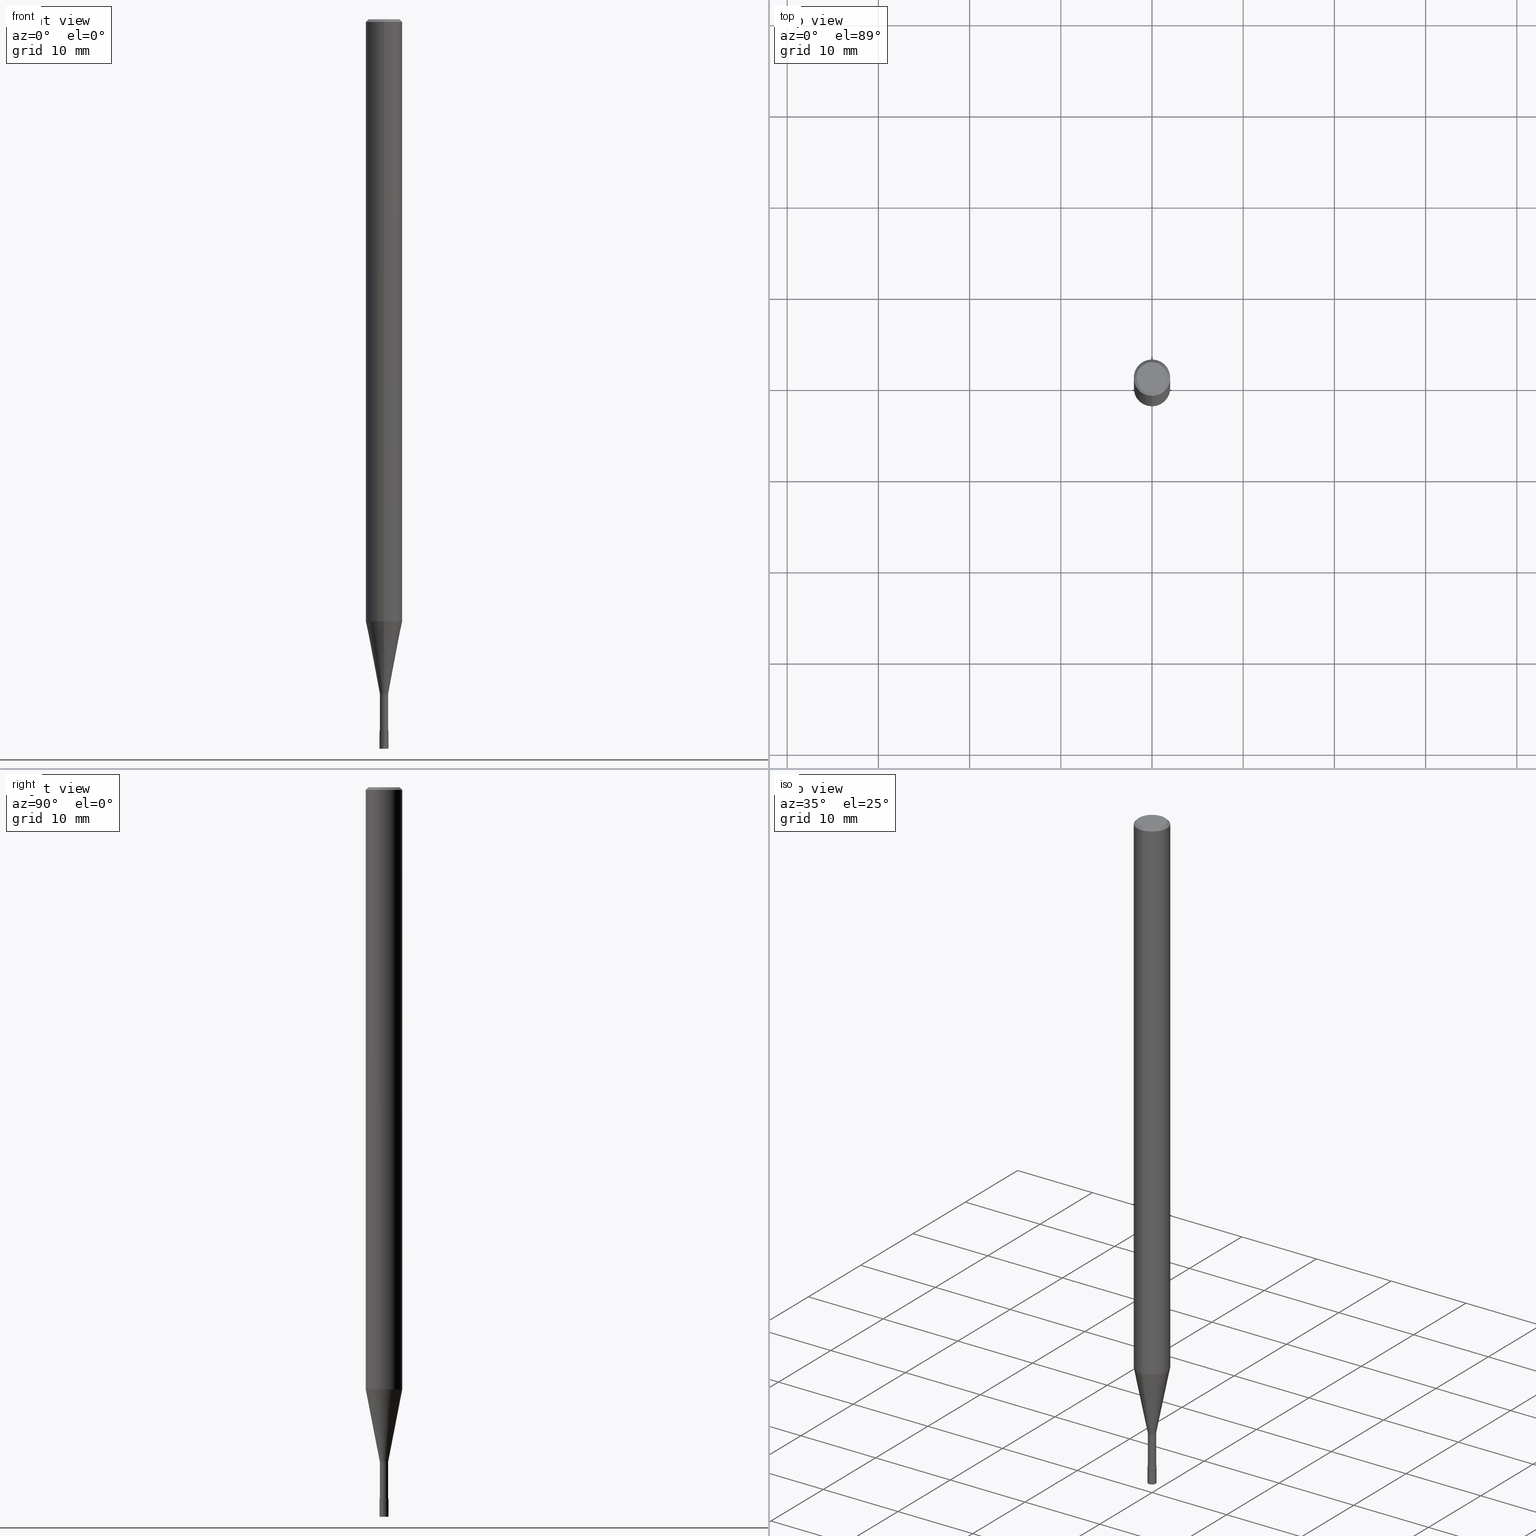
[diagram: canonical four-view strip — front | top / right | iso, engineering-drawing reading convention]
A machine part, canonical four-view strip (front | top / right | iso — engineering-drawing reading convention). The complete STEP part file that produces these views, byte-faithful:
ISO-10303-21;
HEADER;
FILE_DESCRIPTION(('no description'),'unknown implementation level');
FILE_NAME('CPRL2010-6-Huellk.stp','  ',('CIMSOURCE GmbH'),('CADClick - KiM GmbH - www.kimweb.de'),'unknown preprocess','ACIS','unknown authorization');
FILE_SCHEMA(('automotive_design'));
ENDSEC;
DATA;
#1=MECHANICAL_DESIGN_GEOMETRIC_PRESENTATION_REPRESENTATION(' ',(#14,#15,#16,#17,#18,#19,#20,#21,#22,#23,#24,#25,#26,#27,#28,#29,#30,#31,#32,#33,#34,#35,#36,#37,#38,#39,#40,#41,#42,#43,#44,#45,#46,#47,#48,#49,#50,#51,#52,#53,#54,#55,#56,#57,#58,#59,#60,#61,#62,#63,#64,#65,#66,#67,#68,#69,#70,#71,#72),#10);
#2=PRODUCT_DEFINITION_CONTEXT('',#73,'design');
#3=APPLICATION_PROTOCOL_DEFINITION('INTERNATIONAL STANDARD','automotive_design',1994,#73);
#4=PRODUCT_CATEGORY_RELATIONSHIP('NONE','NONE',#74,#75);
#5=SHAPE_DEFINITION_REPRESENTATION(#76,#77);
#6=PRODUCT_DEFINITION_CONTEXT('',#78,'design');
#7=APPLICATION_PROTOCOL_DEFINITION('INTERNATIONAL STANDARD','automotive_design',1994,#78);
#8=PRODUCT_CATEGORY_RELATIONSHIP('NONE','NONE',#79,#80);
#9=SHAPE_DEFINITION_REPRESENTATION(#81,#82);
#10= (GEOMETRIC_REPRESENTATION_CONTEXT(3)GLOBAL_UNCERTAINTY_ASSIGNED_CONTEXT((#85))GLOBAL_UNIT_ASSIGNED_CONTEXT((#87,#88,#89))REPRESENTATION_CONTEXT('NONE','WORKSPACE'));
#14=STYLED_ITEM('',(#91),#92);
#15=STYLED_ITEM('',(#93),#94);
#16=STYLED_ITEM('',(#95),#96);
#17=STYLED_ITEM('',(#97),#98);
#18=STYLED_ITEM('',(#99),#100);
#19=STYLED_ITEM('',(#101),#102);
#20=STYLED_ITEM('',(#103),#104);
#21=STYLED_ITEM('',(#105),#106);
#22=STYLED_ITEM('',(#107),#108);
#23=STYLED_ITEM('',(#109),#110);
#24=STYLED_ITEM('',(#111),#112);
#25=STYLED_ITEM('',(#113),#114);
#26=STYLED_ITEM('',(#115),#116);
#27=STYLED_ITEM('',(#117),#118);
#28=STYLED_ITEM('',(#119),#120);
#29=STYLED_ITEM('',(#121),#122);
#30=STYLED_ITEM('',(#123),#124);
#31=STYLED_ITEM('',(#125),#126);
#32=STYLED_ITEM('',(#127),#128);
#33=STYLED_ITEM('',(#129),#130);
#34=STYLED_ITEM('',(#131),#132);
#35=STYLED_ITEM('',(#133),#134);
#36=STYLED_ITEM('',(#135),#136);
#37=STYLED_ITEM('',(#137),#138);
#38=STYLED_ITEM('',(#139),#140);
#39=STYLED_ITEM('',(#141),#142);
#40=STYLED_ITEM('',(#143),#144);
#41=STYLED_ITEM('',(#145),#146);
#42=STYLED_ITEM('',(#147),#148);
#43=STYLED_ITEM('',(#149),#150);
#44=STYLED_ITEM('',(#151),#152);
#45=STYLED_ITEM('',(#153),#154);
#46=STYLED_ITEM('',(#155),#156);
#47=STYLED_ITEM('',(#157),#158);
#48=STYLED_ITEM('',(#159),#160);
#49=STYLED_ITEM('',(#161),#162);
#50=STYLED_ITEM('',(#163),#164);
#51=STYLED_ITEM('',(#165),#166);
#52=STYLED_ITEM('',(#167),#168);
#53=STYLED_ITEM('',(#169),#170);
#54=STYLED_ITEM('',(#171),#172);
#55=STYLED_ITEM('',(#173),#174);
#56=STYLED_ITEM('',(#175),#176);
#57=STYLED_ITEM('',(#177),#178);
#58=STYLED_ITEM('',(#179),#180);
#59=STYLED_ITEM('',(#181),#182);
#60=STYLED_ITEM('',(#183),#184);
#61=STYLED_ITEM('',(#185),#186);
#62=STYLED_ITEM('',(#187),#188);
#63=STYLED_ITEM('',(#189),#190);
#64=STYLED_ITEM('',(#191),#192);
#65=STYLED_ITEM('',(#193),#194);
#66=STYLED_ITEM('',(#195),#196);
#67=STYLED_ITEM('',(#197),#198);
#68=STYLED_ITEM('',(#199),#200);
#69=STYLED_ITEM('',(#201),#202);
#70=STYLED_ITEM('',(#203),#204);
#71=STYLED_ITEM('',(#205),#206);
#72=STYLED_ITEM('',(#207),#208);
#73=APPLICATION_CONTEXT(' ');
#74=PRODUCT_CATEGORY('part','NONE');
#75=PRODUCT_RELATED_PRODUCT_CATEGORY('detail',' ',(#209));
#76=PRODUCT_DEFINITION_SHAPE('NONE','NONE',#210);
#77=ADVANCED_BREP_SHAPE_REPRESENTATION('1',(#202,#211),#10);
#78=APPLICATION_CONTEXT(' ');
#79=PRODUCT_CATEGORY('part','NONE');
#80=PRODUCT_RELATED_PRODUCT_CATEGORY('detail',' ',(#212));
#81=PRODUCT_DEFINITION_SHAPE('NONE','NONE',#213);
#82=ADVANCED_BREP_SHAPE_REPRESENTATION('2',(#204,#214),#10);
#85=UNCERTAINTY_MEASURE_WITH_UNIT(LENGTH_MEASURE(1.0E-006),#87,'','');
#87= (CONVERSION_BASED_UNIT('MILLIMETRE',#217)LENGTH_UNIT()NAMED_UNIT(#220));
#88= (NAMED_UNIT(#222)PLANE_ANGLE_UNIT()SI_UNIT($,.RADIAN.));
#89= (NAMED_UNIT(#222)SOLID_ANGLE_UNIT()SI_UNIT($,.STERADIAN.));
#91=PRESENTATION_STYLE_ASSIGNMENT((#228));
#92=EDGE_CURVE('',#206,#176,#229,.T.);
#93=PRESENTATION_STYLE_ASSIGNMENT((#230));
#94=ADVANCED_FACE('',(#231),#232,.T.);
#95=PRESENTATION_STYLE_ASSIGNMENT((#233));
#96=ADVANCED_FACE('',(#234),#235,.T.);
#97=PRESENTATION_STYLE_ASSIGNMENT((#236));
#98=ADVANCED_FACE('',(#237),#238,.T.);
#99=PRESENTATION_STYLE_ASSIGNMENT((#239));
#100=EDGE_CURVE('',#132,#152,#240,.T.);
#101=PRESENTATION_STYLE_ASSIGNMENT((#241));
#102=EDGE_CURVE('',#176,#206,#242,.T.);
#103=PRESENTATION_STYLE_ASSIGNMENT((#243));
#104=ADVANCED_FACE('',(#244),#245,.T.);
#105=PRESENTATION_STYLE_ASSIGNMENT((#246));
#106=EDGE_CURVE('',#194,#158,#247,.T.);
#107=PRESENTATION_STYLE_ASSIGNMENT((#248));
#108=EDGE_CURVE('',#152,#208,#249,.T.);
#109=PRESENTATION_STYLE_ASSIGNMENT((#250));
#110=VERTEX_POINT('',#251);
#111=PRESENTATION_STYLE_ASSIGNMENT((#252));
#112=VERTEX_POINT('',#253);
#113=PRESENTATION_STYLE_ASSIGNMENT((#254));
#114=EDGE_CURVE('',#112,#140,#255,.T.);
#115=PRESENTATION_STYLE_ASSIGNMENT((#256));
#116=EDGE_CURVE('',#110,#208,#257,.T.);
#117=PRESENTATION_STYLE_ASSIGNMENT((#258));
#118=EDGE_CURVE('',#154,#160,#259,.T.);
#119=PRESENTATION_STYLE_ASSIGNMENT((#260));
#120=EDGE_CURVE('',#140,#152,#261,.T.);
#121=PRESENTATION_STYLE_ASSIGNMENT((#262));
#122=EDGE_CURVE('',#158,#148,#263,.T.);
#123=PRESENTATION_STYLE_ASSIGNMENT((#264));
#124=EDGE_CURVE('',#134,#174,#265,.T.);
#125=PRESENTATION_STYLE_ASSIGNMENT((#266));
#126=ADVANCED_FACE('',(#267),#268,.T.);
#127=PRESENTATION_STYLE_ASSIGNMENT((#269));
#128=ADVANCED_FACE('',(#270),#271,.T.);
#129=PRESENTATION_STYLE_ASSIGNMENT((#272));
#130=EDGE_CURVE('',#140,#112,#273,.T.);
#131=PRESENTATION_STYLE_ASSIGNMENT((#274));
#132=VERTEX_POINT('',#275);
#133=PRESENTATION_STYLE_ASSIGNMENT((#276));
#134=VERTEX_POINT('',#277);
#135=PRESENTATION_STYLE_ASSIGNMENT((#278));
#136=EDGE_CURVE('',#152,#132,#279,.T.);
#137=PRESENTATION_STYLE_ASSIGNMENT((#280));
#138=ADVANCED_FACE('',(#281),#282,.T.);
#139=PRESENTATION_STYLE_ASSIGNMENT((#283));
#140=VERTEX_POINT('',#284);
#141=PRESENTATION_STYLE_ASSIGNMENT((#285));
#142=EDGE_CURVE('',#178,#194,#286,.T.);
#143=PRESENTATION_STYLE_ASSIGNMENT((#287));
#144=EDGE_CURVE('',#110,#132,#288,.T.);
#145=PRESENTATION_STYLE_ASSIGNMENT((#289));
#146=EDGE_CURVE('',#174,#134,#290,.T.);
#147=PRESENTATION_STYLE_ASSIGNMENT((#291));
#148=VERTEX_POINT('',#292);
#149=PRESENTATION_STYLE_ASSIGNMENT((#293));
#150=ADVANCED_FACE('',(#294),#295,.T.);
#151=PRESENTATION_STYLE_ASSIGNMENT((#296));
#152=VERTEX_POINT('',#297);
#153=PRESENTATION_STYLE_ASSIGNMENT((#298));
#154=VERTEX_POINT('',#299);
#155=PRESENTATION_STYLE_ASSIGNMENT((#300));
#156=ADVANCED_FACE('',(#301),#302,.T.);
#157=PRESENTATION_STYLE_ASSIGNMENT((#303));
#158=VERTEX_POINT('',#304);
#159=PRESENTATION_STYLE_ASSIGNMENT((#305));
#160=VERTEX_POINT('',#306);
#161=PRESENTATION_STYLE_ASSIGNMENT((#307));
#162=EDGE_CURVE('',#208,#110,#308,.T.);
#163=PRESENTATION_STYLE_ASSIGNMENT((#309));
#164=EDGE_CURVE('',#160,#154,#310,.T.);
#165=PRESENTATION_STYLE_ASSIGNMENT((#311));
#166=EDGE_CURVE('',#148,#178,#312,.T.);
#167=PRESENTATION_STYLE_ASSIGNMENT((#313));
#168=EDGE_CURVE('',#194,#178,#314,.T.);
#169=PRESENTATION_STYLE_ASSIGNMENT((#315));
#170=EDGE_CURVE('',#132,#112,#316,.T.);
#171=PRESENTATION_STYLE_ASSIGNMENT((#317));
#172=ADVANCED_FACE('',(#318),#319,.T.);
#173=PRESENTATION_STYLE_ASSIGNMENT((#320));
#174=VERTEX_POINT('',#321);
#175=PRESENTATION_STYLE_ASSIGNMENT((#322));
#176=VERTEX_POINT('',#323);
#177=PRESENTATION_STYLE_ASSIGNMENT((#324));
#178=VERTEX_POINT('',#325);
#179=PRESENTATION_STYLE_ASSIGNMENT((#326));
#180=ADVANCED_FACE('',(#327),#328,.T.);
#181=PRESENTATION_STYLE_ASSIGNMENT((#329));
#182=EDGE_CURVE('',#148,#158,#330,.T.);
#183=PRESENTATION_STYLE_ASSIGNMENT((#331));
#184=EDGE_CURVE('',#160,#206,#332,.T.);
#185=PRESENTATION_STYLE_ASSIGNMENT((#333));
#186=ADVANCED_FACE('',(#334,#335),#336,.T.);
#187=PRESENTATION_STYLE_ASSIGNMENT((#337));
#188=ADVANCED_FACE('',(#338),#339,.T.);
#189=PRESENTATION_STYLE_ASSIGNMENT((#340));
#190=EDGE_CURVE('',#176,#154,#341,.T.);
#191=PRESENTATION_STYLE_ASSIGNMENT((#342));
#192=ADVANCED_FACE('',(#343),#344,.T.);
#193=PRESENTATION_STYLE_ASSIGNMENT((#345));
#194=VERTEX_POINT('',#346);
#195=PRESENTATION_STYLE_ASSIGNMENT((#347));
#196=EDGE_CURVE('',#206,#174,#348,.T.);
#197=PRESENTATION_STYLE_ASSIGNMENT((#349));
#198=ADVANCED_FACE('',(#350),#351,.T.);
#199=PRESENTATION_STYLE_ASSIGNMENT((#352));
#200=EDGE_CURVE('',#134,#176,#353,.T.);
#201=PRESENTATION_STYLE_ASSIGNMENT((#354));
#202=MANIFOLD_SOLID_BREP('1',#355);
#203=PRESENTATION_STYLE_ASSIGNMENT((#356));
#204=MANIFOLD_SOLID_BREP('2',#357);
#205=PRESENTATION_STYLE_ASSIGNMENT((#358));
#206=VERTEX_POINT('',#359);
#207=PRESENTATION_STYLE_ASSIGNMENT((#360));
#208=VERTEX_POINT('',#361);
#209=PRODUCT('1','1','PART-1-DESC',(#362));
#210=PRODUCT_DEFINITION('NONE','NONE',#363,#2);
#211=AXIS2_PLACEMENT_3D('',#364,#365,#366);
#212=PRODUCT('2','2','PART-2-DESC',(#367));
#213=PRODUCT_DEFINITION('NONE','NONE',#368,#6);
#214=AXIS2_PLACEMENT_3D('',#369,#370,#371);
#217=LENGTH_MEASURE_WITH_UNIT(LENGTH_MEASURE(1.0),#372);
#220=DIMENSIONAL_EXPONENTS(1.0,0.0,0.0,0.0,0.0,0.0,0.0);
#222=DIMENSIONAL_EXPONENTS(0.0,0.0,0.0,0.0,0.0,0.0,0.0);
#228=CURVE_STYLE('',#373,POSITIVE_LENGTH_MEASURE(1.0E-006),#374);
#229=CIRCLE('',#375,2.0);
#230=SURFACE_STYLE_USAGE(.BOTH.,#376);
#231=FACE_OUTER_BOUND('',#377,.T.);
#232=CYLINDRICAL_SURFACE('',#378,2.0);
#233=SURFACE_STYLE_USAGE(.BOTH.,#379);
#234=FACE_OUTER_BOUND('',#380,.T.);
#235=CYLINDRICAL_SURFACE('',#381,2.0);
#236=SURFACE_STYLE_USAGE(.BOTH.,#382);
#237=FACE_OUTER_BOUND('',#383,.T.);
#238=CONICAL_SURFACE('',#384,1.85,0.785398163397453);
#239=CURVE_STYLE('',#385,POSITIVE_LENGTH_MEASURE(1.0E-006),#386);
#240=CIRCLE('',#387,0.44995);
#241=CURVE_STYLE('',#388,POSITIVE_LENGTH_MEASURE(1.0E-006),#389);
#242=CIRCLE('',#390,2.0);
#243=SURFACE_STYLE_USAGE(.BOTH.,#391);
#244=FACE_OUTER_BOUND('',#392,.T.);
#245=PLANE('',#393);
#246=CURVE_STYLE('',#394,POSITIVE_LENGTH_MEASURE(1.0E-006),#395);
#247=LINE('',#396,#397);
#248=CURVE_STYLE('',#398,POSITIVE_LENGTH_MEASURE(1.0E-006),#399);
#249=LINE('',#400,#401);
#250=POINT_STYLE(' ',#402,POSITIVE_LENGTH_MEASURE(1.0E-006),#403);
#251=CARTESIAN_POINT('',(5.51011628902379E-017,-0.44995,-78.0));
#252=POINT_STYLE(' ',#404,POSITIVE_LENGTH_MEASURE(1.0E-006),#405);
#253=CARTESIAN_POINT('',(2.44915147732706E-016,-1.99995,-66.026));
#254=CURVE_STYLE('',#406,POSITIVE_LENGTH_MEASURE(1.0E-006),#407);
#255=CIRCLE('',#408,1.99995);
#256=CURVE_STYLE('',#409,POSITIVE_LENGTH_MEASURE(1.0E-006),#410);
#257=CIRCLE('',#411,0.44995);
#258=CURVE_STYLE('',#412,POSITIVE_LENGTH_MEASURE(1.0E-006),#413);
#259=CIRCLE('',#414,2.0);
#260=CURVE_STYLE('',#415,POSITIVE_LENGTH_MEASURE(1.0E-006),#416);
#261=LINE('',#417,#418);
#262=CURVE_STYLE('',#419,POSITIVE_LENGTH_MEASURE(1.0E-006),#420);
#263=CIRCLE('',#421,0.5);
#264=CURVE_STYLE('',#422,POSITIVE_LENGTH_MEASURE(1.0E-006),#423);
#265=CIRCLE('',#424,1.7);
#266=SURFACE_STYLE_USAGE(.BOTH.,#425);
#267=FACE_OUTER_BOUND('',#426,.T.);
#268=CONICAL_SURFACE('',#427,0.49995,4.99999999583278E-005);
#269=SURFACE_STYLE_USAGE(.BOTH.,#428);
#270=FACE_OUTER_BOUND('',#429,.T.);
#271=PLANE('',#430);
#272=CURVE_STYLE('',#431,POSITIVE_LENGTH_MEASURE(1.0E-006),#432);
#273=CIRCLE('',#433,1.99995);
#274=POINT_STYLE(' ',#434,POSITIVE_LENGTH_MEASURE(1.0E-006),#435);
#275=CARTESIAN_POINT('',(5.51011628902379E-017,-0.44995,-74.0));
#276=POINT_STYLE(' ',#436,POSITIVE_LENGTH_MEASURE(1.0E-006),#437);
#277=CARTESIAN_POINT('',(0.0,1.7,0.0));
#278=CURVE_STYLE('',#438,POSITIVE_LENGTH_MEASURE(1.0E-006),#439);
#279=CIRCLE('',#440,0.44995);
#280=SURFACE_STYLE_USAGE(.BOTH.,#441);
#281=FACE_OUTER_BOUND('',#442,.T.);
#282=PLANE('',#443);
#283=POINT_STYLE(' ',#444,POSITIVE_LENGTH_MEASURE(1.0E-006),#445);
#284=CARTESIAN_POINT('',(0.0,1.99995,-66.026));
#285=CURVE_STYLE('',#446,POSITIVE_LENGTH_MEASURE(1.0E-006),#447);
#286=CIRCLE('',#448,0.4999);
#287=CURVE_STYLE('',#449,POSITIVE_LENGTH_MEASURE(1.0E-006),#450);
#288=LINE('',#451,#452);
#289=CURVE_STYLE('',#453,POSITIVE_LENGTH_MEASURE(1.0E-006),#454);
#290=CIRCLE('',#455,1.7);
#291=POINT_STYLE(' ',#456,POSITIVE_LENGTH_MEASURE(1.0E-006),#457);
#292=CARTESIAN_POINT('',(6.12303176911189E-017,-0.5,-80.0));
#293=SURFACE_STYLE_USAGE(.BOTH.,#458);
#294=FACE_OUTER_BOUND('',#459,.T.);
#295=CONICAL_SURFACE('',#460,1.85,0.785398163397453);
#296=POINT_STYLE(' ',#461,POSITIVE_LENGTH_MEASURE(1.0E-006),#462);
#297=CARTESIAN_POINT('',(0.0,0.44995,-74.0));
#298=POINT_STYLE(' ',#463,POSITIVE_LENGTH_MEASURE(1.0E-006),#464);
#299=CARTESIAN_POINT('',(0.0,2.0,-66.026));
#300=SURFACE_STYLE_USAGE(.BOTH.,#465);
#301=FACE_OUTER_BOUND('',#466,.T.);
#302=CONICAL_SURFACE('',#467,1.22495,0.191987597119561);
#303=POINT_STYLE(' ',#468,POSITIVE_LENGTH_MEASURE(1.0E-006),#469);
#304=CARTESIAN_POINT('',(0.0,0.5,-80.0));
#305=POINT_STYLE(' ',#470,POSITIVE_LENGTH_MEASURE(1.0E-006),#471);
#306=CARTESIAN_POINT('',(2.44921270764475E-016,-2.0,-66.026));
#307=CURVE_STYLE('',#472,POSITIVE_LENGTH_MEASURE(1.0E-006),#473);
#308=CIRCLE('',#474,0.44995);
#309=CURVE_STYLE('',#475,POSITIVE_LENGTH_MEASURE(1.0E-006),#476);
#310=CIRCLE('',#477,2.0);
#311=CURVE_STYLE('',#478,POSITIVE_LENGTH_MEASURE(1.0E-006),#479);
#312=LINE('',#480,#481);
#313=CURVE_STYLE('',#482,POSITIVE_LENGTH_MEASURE(1.0E-006),#483);
#314=CIRCLE('',#484,0.4999);
#315=CURVE_STYLE('',#485,POSITIVE_LENGTH_MEASURE(1.0E-006),#486);
#316=LINE('',#487,#488);
#317=SURFACE_STYLE_USAGE(.BOTH.,#489);
#318=FACE_OUTER_BOUND('',#490,.T.);
#319=CONICAL_SURFACE('',#491,1.22495,0.191987597119561);
#320=POINT_STYLE(' ',#492,POSITIVE_LENGTH_MEASURE(1.0E-006),#493);
#321=CARTESIAN_POINT('',(2.08183080149804E-016,-1.7,0.0));
#322=POINT_STYLE(' ',#494,POSITIVE_LENGTH_MEASURE(1.0E-006),#495);
#323=CARTESIAN_POINT('',(0.0,2.0,-0.299999999999997));
#324=POINT_STYLE(' ',#496,POSITIVE_LENGTH_MEASURE(1.0E-006),#497);
#325=CARTESIAN_POINT('',(6.12180716275807E-017,-0.4999,-78.0));
#326=SURFACE_STYLE_USAGE(.BOTH.,#498);
#327=FACE_OUTER_BOUND('',#499,.T.);
#328=CYLINDRICAL_SURFACE('',#500,0.44995);
#329=CURVE_STYLE('',#501,POSITIVE_LENGTH_MEASURE(1.0E-006),#502);
#330=CIRCLE('',#503,0.5);
#331=CURVE_STYLE('',#504,POSITIVE_LENGTH_MEASURE(1.0E-006),#505);
#332=LINE('',#506,#507);
#333=SURFACE_STYLE_USAGE(.BOTH.,#508);
#334=FACE_OUTER_BOUND('',#509,.T.);
#335=FACE_BOUND('',#510,.T.);
#336=PLANE('',#511);
#337=SURFACE_STYLE_USAGE(.BOTH.,#512);
#338=FACE_OUTER_BOUND('',#513,.T.);
#339=CONICAL_SURFACE('',#514,0.49995,4.99999999583278E-005);
#340=CURVE_STYLE('',#515,POSITIVE_LENGTH_MEASURE(1.0E-006),#516);
#341=LINE('',#517,#518);
#342=SURFACE_STYLE_USAGE(.BOTH.,#519);
#343=FACE_OUTER_BOUND('',#520,.T.);
#344=PLANE('',#521);
#345=POINT_STYLE(' ',#522,POSITIVE_LENGTH_MEASURE(1.0E-006),#523);
#346=CARTESIAN_POINT('',(0.0,0.4999,-78.0));
#347=CURVE_STYLE('',#524,POSITIVE_LENGTH_MEASURE(1.0E-006),#525);
#348=LINE('',#526,#527);
#349=SURFACE_STYLE_USAGE(.BOTH.,#528);
#350=FACE_OUTER_BOUND('',#529,.T.);
#351=CYLINDRICAL_SURFACE('',#530,0.44995);
#352=CURVE_STYLE('',#531,POSITIVE_LENGTH_MEASURE(1.0E-006),#532);
#353=LINE('',#533,#534);
#354=SURFACE_STYLE_USAGE(.BOTH.,#535);
#355=CLOSED_SHELL('',(#198,#172,#96,#150,#186,#138,#98,#94,#156,#180,#104));
#356=SURFACE_STYLE_USAGE(.BOTH.,#536);
#357=CLOSED_SHELL('',(#126,#192,#188,#128));
#358=POINT_STYLE(' ',#537,POSITIVE_LENGTH_MEASURE(1.0E-006),#538);
#359=CARTESIAN_POINT('',(2.44921270764475E-016,-2.0,-0.299999999999997));
#360=POINT_STYLE(' ',#539,POSITIVE_LENGTH_MEASURE(1.0E-006),#540);
#361=CARTESIAN_POINT('',(0.0,0.44995,-78.0));
#362=PRODUCT_CONTEXT('',#73,'mechanical');
#363=PRODUCT_DEFINITION_FORMATION_WITH_SPECIFIED_SOURCE(' ','NONE',#209,.NOT_KNOWN.);
#364=CARTESIAN_POINT('',(0.0,0.0,0.0));
#365=DIRECTION('',(0.0,0.0,1.0));
#366=DIRECTION('',(1.0,0.0,0.0));
#367=PRODUCT_CONTEXT('',#78,'mechanical');
#368=PRODUCT_DEFINITION_FORMATION_WITH_SPECIFIED_SOURCE(' ','NONE',#212,.NOT_KNOWN.);
#369=CARTESIAN_POINT('',(0.0,0.0,0.0));
#370=DIRECTION('',(0.0,0.0,1.0));
#371=DIRECTION('',(1.0,0.0,0.0));
#372= (NAMED_UNIT(#220)LENGTH_UNIT()SI_UNIT(.MILLI.,.METRE.));
#373=DRAUGHTING_PRE_DEFINED_CURVE_FONT('continuous');
#374=COLOUR_RGB('',0.498039215803146,0.498039215803146,0.498039215803146);
#375=AXIS2_PLACEMENT_3D('',#542,#543,#544);
#376=SURFACE_SIDE_STYLE('',(#545));
#377=EDGE_LOOP('',(#546,#547,#548,#549));
#378=AXIS2_PLACEMENT_3D('',#550,#551,#552);
#379=SURFACE_SIDE_STYLE('',(#553));
#380=EDGE_LOOP('',(#554,#555,#556,#557));
#381=AXIS2_PLACEMENT_3D('',#558,#559,#560);
#382=SURFACE_SIDE_STYLE('',(#561));
#383=EDGE_LOOP('',(#562,#563,#564,#565));
#384=AXIS2_PLACEMENT_3D('',#566,#567,#568);
#385=DRAUGHTING_PRE_DEFINED_CURVE_FONT('continuous');
#386=COLOUR_RGB('',0.498039215803146,0.498039215803146,0.498039215803146);
#387=AXIS2_PLACEMENT_3D('',#569,#570,#571);
#388=DRAUGHTING_PRE_DEFINED_CURVE_FONT('continuous');
#389=COLOUR_RGB('',0.498039215803146,0.498039215803146,0.498039215803146);
#390=AXIS2_PLACEMENT_3D('',#572,#573,#574);
#391=SURFACE_SIDE_STYLE('',(#575));
#392=EDGE_LOOP('',(#576,#577));
#393=AXIS2_PLACEMENT_3D('',#578,#579,#580);
#394=DRAUGHTING_PRE_DEFINED_CURVE_FONT('continuous');
#395=COLOUR_RGB('',0.800000011920929,0.800000011920929,0.800000011920929);
#396=CARTESIAN_POINT('',(-6.12241946593498E-017,0.49995,-79.0));
#397=VECTOR('',#581,1.0);
#398=DRAUGHTING_PRE_DEFINED_CURVE_FONT('continuous');
#399=COLOUR_RGB('',0.498039215803146,0.498039215803146,0.498039215803146);
#400=CARTESIAN_POINT('',(-5.51011628902379E-017,0.44995,-76.0));
#401=VECTOR('',#582,1.0);
#402=PRE_DEFINED_MARKER('');
#403=COLOUR_RGB('',0.498039215803146,0.498039215803146,0.498039215803146);
#404=PRE_DEFINED_MARKER('');
#405=COLOUR_RGB('',0.498039215803146,0.498039215803146,0.498039215803146);
#406=DRAUGHTING_PRE_DEFINED_CURVE_FONT('continuous');
#407=COLOUR_RGB('',0.498039215803146,0.498039215803146,0.498039215803146);
#408=AXIS2_PLACEMENT_3D('',#583,#584,#585);
#409=DRAUGHTING_PRE_DEFINED_CURVE_FONT('continuous');
#410=COLOUR_RGB('',0.498039215803146,0.498039215803146,0.498039215803146);
#411=AXIS2_PLACEMENT_3D('',#586,#587,#588);
#412=DRAUGHTING_PRE_DEFINED_CURVE_FONT('continuous');
#413=COLOUR_RGB('',0.498039215803146,0.498039215803146,0.498039215803146);
#414=AXIS2_PLACEMENT_3D('',#589,#590,#591);
#415=DRAUGHTING_PRE_DEFINED_CURVE_FONT('continuous');
#416=COLOUR_RGB('',0.498039215803146,0.498039215803146,0.498039215803146);
#417=CARTESIAN_POINT('',(-1.50008155311472E-016,1.22495,-70.013));
#418=VECTOR('',#592,1.0);
#419=DRAUGHTING_PRE_DEFINED_CURVE_FONT('continuous');
#420=COLOUR_RGB('',0.800000011920929,0.800000011920929,0.800000011920929);
#421=AXIS2_PLACEMENT_3D('',#593,#594,#595);
#422=DRAUGHTING_PRE_DEFINED_CURVE_FONT('continuous');
#423=COLOUR_RGB('',0.498039215803146,0.498039215803146,0.498039215803146);
#424=AXIS2_PLACEMENT_3D('',#596,#597,#598);
#425=SURFACE_SIDE_STYLE('',(#599));
#426=EDGE_LOOP('',(#600,#601,#602,#603));
#427=AXIS2_PLACEMENT_3D('',#604,#605,#606);
#428=SURFACE_SIDE_STYLE('',(#607));
#429=EDGE_LOOP('',(#608,#609));
#430=AXIS2_PLACEMENT_3D('',#610,#611,#612);
#431=DRAUGHTING_PRE_DEFINED_CURVE_FONT('continuous');
#432=COLOUR_RGB('',0.498039215803146,0.498039215803146,0.498039215803146);
#433=AXIS2_PLACEMENT_3D('',#613,#614,#615);
#434=PRE_DEFINED_MARKER('');
#435=COLOUR_RGB('',0.498039215803146,0.498039215803146,0.498039215803146);
#436=PRE_DEFINED_MARKER('');
#437=COLOUR_RGB('',0.498039215803146,0.498039215803146,0.498039215803146);
#438=DRAUGHTING_PRE_DEFINED_CURVE_FONT('continuous');
#439=COLOUR_RGB('',0.498039215803146,0.498039215803146,0.498039215803146);
#440=AXIS2_PLACEMENT_3D('',#616,#617,#618);
#441=SURFACE_SIDE_STYLE('',(#619));
#442=EDGE_LOOP('',(#620,#621));
#443=AXIS2_PLACEMENT_3D('',#622,#623,#624);
#444=PRE_DEFINED_MARKER('');
#445=COLOUR_RGB('',0.498039215803146,0.498039215803146,0.498039215803146);
#446=DRAUGHTING_PRE_DEFINED_CURVE_FONT('continuous');
#447=COLOUR_RGB('',0.800000011920929,0.800000011920929,0.800000011920929);
#448=AXIS2_PLACEMENT_3D('',#625,#626,#627);
#449=DRAUGHTING_PRE_DEFINED_CURVE_FONT('continuous');
#450=COLOUR_RGB('',0.498039215803146,0.498039215803146,0.498039215803146);
#451=CARTESIAN_POINT('',(5.51011628902379E-017,-0.44995,-76.0));
#452=VECTOR('',#628,1.0);
#453=DRAUGHTING_PRE_DEFINED_CURVE_FONT('continuous');
#454=COLOUR_RGB('',0.498039215803146,0.498039215803146,0.498039215803146);
#455=AXIS2_PLACEMENT_3D('',#629,#630,#631);
#456=PRE_DEFINED_MARKER('');
#457=COLOUR_RGB('',0.800000011920929,0.800000011920929,0.800000011920929);
#458=SURFACE_SIDE_STYLE('',(#632));
#459=EDGE_LOOP('',(#633,#634,#635,#636));
#460=AXIS2_PLACEMENT_3D('',#637,#638,#639);
#461=PRE_DEFINED_MARKER('');
#462=COLOUR_RGB('',0.498039215803146,0.498039215803146,0.498039215803146);
#463=PRE_DEFINED_MARKER('');
#464=COLOUR_RGB('',0.498039215803146,0.498039215803146,0.498039215803146);
#465=SURFACE_SIDE_STYLE('',(#640));
#466=EDGE_LOOP('',(#641,#642,#643,#644));
#467=AXIS2_PLACEMENT_3D('',#645,#646,#647);
#468=PRE_DEFINED_MARKER('');
#469=COLOUR_RGB('',0.800000011920929,0.800000011920929,0.800000011920929);
#470=PRE_DEFINED_MARKER('');
#471=COLOUR_RGB('',0.498039215803146,0.498039215803146,0.498039215803146);
#472=DRAUGHTING_PRE_DEFINED_CURVE_FONT('continuous');
#473=COLOUR_RGB('',0.498039215803146,0.498039215803146,0.498039215803146);
#474=AXIS2_PLACEMENT_3D('',#648,#649,#650);
#475=DRAUGHTING_PRE_DEFINED_CURVE_FONT('continuous');
#476=COLOUR_RGB('',0.498039215803146,0.498039215803146,0.498039215803146);
#477=AXIS2_PLACEMENT_3D('',#651,#652,#653);
#478=DRAUGHTING_PRE_DEFINED_CURVE_FONT('continuous');
#479=COLOUR_RGB('',0.800000011920929,0.800000011920929,0.800000011920929);
#480=CARTESIAN_POINT('',(6.12241946593498E-017,-0.49995,-79.0));
#481=VECTOR('',#654,1.0);
#482=DRAUGHTING_PRE_DEFINED_CURVE_FONT('continuous');
#483=COLOUR_RGB('',0.800000011920929,0.800000011920929,0.800000011920929);
#484=AXIS2_PLACEMENT_3D('',#655,#656,#657);
#485=DRAUGHTING_PRE_DEFINED_CURVE_FONT('continuous');
#486=COLOUR_RGB('',0.498039215803146,0.498039215803146,0.498039215803146);
#487=CARTESIAN_POINT('',(1.50008155311472E-016,-1.22495,-70.013));
#488=VECTOR('',#658,1.0);
#489=SURFACE_SIDE_STYLE('',(#659));
#490=EDGE_LOOP('',(#660,#661,#662,#663));
#491=AXIS2_PLACEMENT_3D('',#664,#665,#666);
#492=PRE_DEFINED_MARKER('');
#493=COLOUR_RGB('',0.498039215803146,0.498039215803146,0.498039215803146);
#494=PRE_DEFINED_MARKER('');
#495=COLOUR_RGB('',0.498039215803146,0.498039215803146,0.498039215803146);
#496=PRE_DEFINED_MARKER('');
#497=COLOUR_RGB('',0.800000011920929,0.800000011920929,0.800000011920929);
#498=SURFACE_SIDE_STYLE('',(#667));
#499=EDGE_LOOP('',(#668,#669,#670,#671));
#500=AXIS2_PLACEMENT_3D('',#672,#673,#674);
#501=DRAUGHTING_PRE_DEFINED_CURVE_FONT('continuous');
#502=COLOUR_RGB('',0.800000011920929,0.800000011920929,0.800000011920929);
#503=AXIS2_PLACEMENT_3D('',#675,#676,#677);
#504=DRAUGHTING_PRE_DEFINED_CURVE_FONT('continuous');
#505=COLOUR_RGB('',0.498039215803146,0.498039215803146,0.498039215803146);
#506=CARTESIAN_POINT('',(2.44921270764475E-016,-2.0,-33.163));
#507=VECTOR('',#678,1.0);
#508=SURFACE_SIDE_STYLE('',(#679));
#509=EDGE_LOOP('',(#680,#681));
#510=EDGE_LOOP('',(#682,#683));
#511=AXIS2_PLACEMENT_3D('',#684,#685,#686);
#512=SURFACE_SIDE_STYLE('',(#687));
#513=EDGE_LOOP('',(#688,#689,#690,#691));
#514=AXIS2_PLACEMENT_3D('',#692,#693,#694);
#515=DRAUGHTING_PRE_DEFINED_CURVE_FONT('continuous');
#516=COLOUR_RGB('',0.498039215803146,0.498039215803146,0.498039215803146);
#517=CARTESIAN_POINT('',(-2.44921270764475E-016,2.0,-33.163));
#518=VECTOR('',#695,1.0);
#519=SURFACE_SIDE_STYLE('',(#696));
#520=EDGE_LOOP('',(#697,#698));
#521=AXIS2_PLACEMENT_3D('',#699,#700,#701);
#522=PRE_DEFINED_MARKER('');
#523=COLOUR_RGB('',0.800000011920929,0.800000011920929,0.800000011920929);
#524=DRAUGHTING_PRE_DEFINED_CURVE_FONT('continuous');
#525=COLOUR_RGB('',0.498039215803146,0.498039215803146,0.498039215803146);
#526=CARTESIAN_POINT('',(2.2655217545714E-016,-1.85,-0.149999999999991));
#527=VECTOR('',#702,1.0);
#528=SURFACE_SIDE_STYLE('',(#703));
#529=EDGE_LOOP('',(#704,#705,#706,#707));
#530=AXIS2_PLACEMENT_3D('',#708,#709,#710);
#531=DRAUGHTING_PRE_DEFINED_CURVE_FONT('continuous');
#532=COLOUR_RGB('',0.498039215803146,0.498039215803146,0.498039215803146);
#533=CARTESIAN_POINT('',(-2.2655217545714E-016,1.85,-0.149999999999991));
#534=VECTOR('',#711,1.0);
#535=SURFACE_SIDE_STYLE('',(#712));
#536=SURFACE_SIDE_STYLE('',(#713));
#537=PRE_DEFINED_MARKER('');
#538=COLOUR_RGB('',0.498039215803146,0.498039215803146,0.498039215803146);
#539=PRE_DEFINED_MARKER('');
#540=COLOUR_RGB('',0.498039215803146,0.498039215803146,0.498039215803146);
#542=CARTESIAN_POINT('',(0.0,0.0,-0.299999999999997));
#543=DIRECTION('',(0.0,0.0,-1.0));
#544=DIRECTION('',(0.0,1.0,0.0));
#545=SURFACE_STYLE_FILL_AREA(#714);
#546=ORIENTED_EDGE('',*,*,#190,.T.);
#547=ORIENTED_EDGE('',*,*,#164,.F.);
#548=ORIENTED_EDGE('',*,*,#184,.T.);
#549=ORIENTED_EDGE('',*,*,#92,.T.);
#550=CARTESIAN_POINT('',(0.0,0.0,-33.163));
#551=DIRECTION('',(-0.0,-0.0,1.0));
#552=DIRECTION('',(0.0,1.0,0.0));
#553=SURFACE_STYLE_FILL_AREA(#715);
#554=ORIENTED_EDGE('',*,*,#190,.F.);
#555=ORIENTED_EDGE('',*,*,#102,.T.);
#556=ORIENTED_EDGE('',*,*,#184,.F.);
#557=ORIENTED_EDGE('',*,*,#118,.F.);
#558=CARTESIAN_POINT('',(0.0,0.0,-33.163));
#559=DIRECTION('',(-0.0,-0.0,1.0));
#560=DIRECTION('',(0.0,1.0,0.0));
#561=SURFACE_STYLE_FILL_AREA(#716);
#562=ORIENTED_EDGE('',*,*,#200,.T.);
#563=ORIENTED_EDGE('',*,*,#92,.F.);
#564=ORIENTED_EDGE('',*,*,#196,.T.);
#565=ORIENTED_EDGE('',*,*,#146,.T.);
#566=CARTESIAN_POINT('',(0.0,0.0,-0.149999999999991));
#567=DIRECTION('',(0.0,-0.0,-1.0));
#568=DIRECTION('',(0.0,1.0,0.0));
#569=CARTESIAN_POINT('',(0.0,0.0,-74.0));
#570=DIRECTION('',(0.0,0.0,-1.0));
#571=DIRECTION('',(0.0,1.0,0.0));
#572=CARTESIAN_POINT('',(0.0,0.0,-0.299999999999997));
#573=DIRECTION('',(0.0,0.0,-1.0));
#574=DIRECTION('',(0.0,1.0,0.0));
#575=SURFACE_STYLE_FILL_AREA(#717);
#576=ORIENTED_EDGE('',*,*,#162,.T.);
#577=ORIENTED_EDGE('',*,*,#116,.T.);
#578=CARTESIAN_POINT('',(0.0,0.224975,-78.0));
#579=DIRECTION('',(0.0,0.0,-1.0));
#580=DIRECTION('',(0.0,1.0,0.0));
#581=DIRECTION('',(-6.12303176145742E-021,4.99999999374945E-005,-0.99999999875));
#582=DIRECTION('',(0.0,0.0,-1.0));
#583=CARTESIAN_POINT('',(0.0,0.0,-66.026));
#584=DIRECTION('',(0.0,0.0,-1.0));
#585=DIRECTION('',(0.0,1.0,0.0));
#586=CARTESIAN_POINT('',(0.0,0.0,-78.0));
#587=DIRECTION('',(0.0,0.0,-1.0));
#588=DIRECTION('',(0.0,1.0,0.0));
#589=CARTESIAN_POINT('',(0.0,0.0,-66.026));
#590=DIRECTION('',(0.0,0.0,-1.0));
#591=DIRECTION('',(0.0,1.0,0.0));
#592=DIRECTION('',(2.3366756629082E-017,-0.190810349433081,-0.981626920244767));
#593=CARTESIAN_POINT('',(0.0,0.0,-80.0));
#594=DIRECTION('',(0.0,0.0,-1.0));
#595=DIRECTION('',(0.0,1.0,0.0));
#596=CARTESIAN_POINT('',(0.0,0.0,0.0));
#597=DIRECTION('',(0.0,0.0,-1.0));
#598=DIRECTION('',(0.0,1.0,0.0));
#599=SURFACE_STYLE_FILL_AREA(#718);
#600=ORIENTED_EDGE('',*,*,#106,.F.);
#601=ORIENTED_EDGE('',*,*,#168,.T.);
#602=ORIENTED_EDGE('',*,*,#166,.F.);
#603=ORIENTED_EDGE('',*,*,#122,.F.);
#604=CARTESIAN_POINT('',(0.0,0.0,-79.0));
#605=DIRECTION('',(0.0,-0.0,-1.0));
#606=DIRECTION('',(0.0,1.0,0.0));
#607=SURFACE_STYLE_FILL_AREA(#719);
#608=ORIENTED_EDGE('',*,*,#122,.T.);
#609=ORIENTED_EDGE('',*,*,#182,.T.);
#610=CARTESIAN_POINT('',(0.0,0.2475,-80.0));
#611=DIRECTION('',(0.0,0.0,-1.0));
#612=DIRECTION('',(0.0,1.0,0.0));
#613=CARTESIAN_POINT('',(0.0,0.0,-66.026));
#614=DIRECTION('',(0.0,0.0,-1.0));
#615=DIRECTION('',(0.0,1.0,0.0));
#616=CARTESIAN_POINT('',(0.0,0.0,-74.0));
#617=DIRECTION('',(0.0,0.0,-1.0));
#618=DIRECTION('',(0.0,1.0,0.0));
#619=SURFACE_STYLE_FILL_AREA(#720);
#620=ORIENTED_EDGE('',*,*,#124,.F.);
#621=ORIENTED_EDGE('',*,*,#146,.F.);
#622=CARTESIAN_POINT('',(0.0,0.85,0.0));
#623=DIRECTION('',(-0.0,0.0,1.0));
#624=DIRECTION('',(0.0,-1.0,0.0));
#625=CARTESIAN_POINT('',(0.0,0.0,-78.0));
#626=DIRECTION('',(0.0,0.0,-1.0));
#627=DIRECTION('',(0.0,1.0,0.0));
#628=DIRECTION('',(-0.0,-0.0,1.0));
#629=CARTESIAN_POINT('',(0.0,0.0,0.0));
#630=DIRECTION('',(0.0,0.0,-1.0));
#631=DIRECTION('',(0.0,1.0,0.0));
#632=SURFACE_STYLE_FILL_AREA(#721);
#633=ORIENTED_EDGE('',*,*,#200,.F.);
#634=ORIENTED_EDGE('',*,*,#124,.T.);
#635=ORIENTED_EDGE('',*,*,#196,.F.);
#636=ORIENTED_EDGE('',*,*,#102,.F.);
#637=CARTESIAN_POINT('',(0.0,0.0,-0.149999999999991));
#638=DIRECTION('',(0.0,-0.0,-1.0));
#639=DIRECTION('',(0.0,1.0,0.0));
#640=SURFACE_STYLE_FILL_AREA(#722);
#641=ORIENTED_EDGE('',*,*,#120,.T.);
#642=ORIENTED_EDGE('',*,*,#100,.F.);
#643=ORIENTED_EDGE('',*,*,#170,.T.);
#644=ORIENTED_EDGE('',*,*,#114,.T.);
#645=CARTESIAN_POINT('',(0.0,0.0,-70.013));
#646=DIRECTION('',(-0.0,-0.0,1.0));
#647=DIRECTION('',(0.0,1.0,0.0));
#648=CARTESIAN_POINT('',(0.0,0.0,-78.0));
#649=DIRECTION('',(0.0,0.0,-1.0));
#650=DIRECTION('',(0.0,1.0,0.0));
#651=CARTESIAN_POINT('',(0.0,0.0,-66.026));
#652=DIRECTION('',(0.0,0.0,-1.0));
#653=DIRECTION('',(0.0,1.0,0.0));
#654=DIRECTION('',(-6.12303176145742E-021,4.99999999374945E-005,0.99999999875));
#655=CARTESIAN_POINT('',(0.0,0.0,-78.0));
#656=DIRECTION('',(0.0,0.0,-1.0));
#657=DIRECTION('',(0.0,1.0,0.0));
#658=DIRECTION('',(2.3366756629082E-017,-0.190810349433081,0.981626920244767));
#659=SURFACE_STYLE_FILL_AREA(#723);
#660=ORIENTED_EDGE('',*,*,#120,.F.);
#661=ORIENTED_EDGE('',*,*,#130,.T.);
#662=ORIENTED_EDGE('',*,*,#170,.F.);
#663=ORIENTED_EDGE('',*,*,#136,.F.);
#664=CARTESIAN_POINT('',(0.0,0.0,-70.013));
#665=DIRECTION('',(-0.0,-0.0,1.0));
#666=DIRECTION('',(0.0,1.0,0.0));
#667=SURFACE_STYLE_FILL_AREA(#724);
#668=ORIENTED_EDGE('',*,*,#108,.T.);
#669=ORIENTED_EDGE('',*,*,#116,.F.);
#670=ORIENTED_EDGE('',*,*,#144,.T.);
#671=ORIENTED_EDGE('',*,*,#100,.T.);
#672=CARTESIAN_POINT('',(0.0,0.0,-76.0));
#673=DIRECTION('',(-0.0,-0.0,1.0));
#674=DIRECTION('',(0.0,1.0,0.0));
#675=CARTESIAN_POINT('',(0.0,0.0,-80.0));
#676=DIRECTION('',(0.0,0.0,-1.0));
#677=DIRECTION('',(0.0,1.0,0.0));
#678=DIRECTION('',(-0.0,-0.0,1.0));
#679=SURFACE_STYLE_FILL_AREA(#725);
#680=ORIENTED_EDGE('',*,*,#118,.T.);
#681=ORIENTED_EDGE('',*,*,#164,.T.);
#682=ORIENTED_EDGE('',*,*,#130,.F.);
#683=ORIENTED_EDGE('',*,*,#114,.F.);
#684=CARTESIAN_POINT('',(0.0,1.0,-66.026));
#685=DIRECTION('',(0.0,0.0,-1.0));
#686=DIRECTION('',(0.0,1.0,0.0));
#687=SURFACE_STYLE_FILL_AREA(#726);
#688=ORIENTED_EDGE('',*,*,#106,.T.);
#689=ORIENTED_EDGE('',*,*,#182,.F.);
#690=ORIENTED_EDGE('',*,*,#166,.T.);
#691=ORIENTED_EDGE('',*,*,#142,.T.);
#692=CARTESIAN_POINT('',(0.0,0.0,-79.0));
#693=DIRECTION('',(0.0,-0.0,-1.0));
#694=DIRECTION('',(0.0,1.0,0.0));
#695=DIRECTION('',(0.0,0.0,-1.0));
#696=SURFACE_STYLE_FILL_AREA(#727);
#697=ORIENTED_EDGE('',*,*,#168,.F.);
#698=ORIENTED_EDGE('',*,*,#142,.F.);
#699=CARTESIAN_POINT('',(0.0,0.24995,-78.0));
#700=DIRECTION('',(-0.0,0.0,1.0));
#701=DIRECTION('',(0.0,-1.0,0.0));
#702=DIRECTION('',(-8.6592745707194E-017,0.707106781186551,0.707106781186544));
#703=SURFACE_STYLE_FILL_AREA(#728);
#704=ORIENTED_EDGE('',*,*,#108,.F.);
#705=ORIENTED_EDGE('',*,*,#136,.T.);
#706=ORIENTED_EDGE('',*,*,#144,.F.);
#707=ORIENTED_EDGE('',*,*,#162,.F.);
#708=CARTESIAN_POINT('',(0.0,0.0,-76.0));
#709=DIRECTION('',(-0.0,-0.0,1.0));
#710=DIRECTION('',(0.0,1.0,0.0));
#711=DIRECTION('',(-8.6592745707194E-017,0.707106781186551,-0.707106781186544));
#712=SURFACE_STYLE_FILL_AREA(#729);
#713=SURFACE_STYLE_FILL_AREA(#730);
#714=FILL_AREA_STYLE('',(#731));
#715=FILL_AREA_STYLE('',(#732));
#716=FILL_AREA_STYLE('',(#733));
#717=FILL_AREA_STYLE('',(#734));
#718=FILL_AREA_STYLE('',(#735));
#719=FILL_AREA_STYLE('',(#736));
#720=FILL_AREA_STYLE('',(#737));
#721=FILL_AREA_STYLE('',(#738));
#722=FILL_AREA_STYLE('',(#739));
#723=FILL_AREA_STYLE('',(#740));
#724=FILL_AREA_STYLE('',(#741));
#725=FILL_AREA_STYLE('',(#742));
#726=FILL_AREA_STYLE('',(#743));
#727=FILL_AREA_STYLE('',(#744));
#728=FILL_AREA_STYLE('',(#745));
#729=FILL_AREA_STYLE('',(#746));
#730=FILL_AREA_STYLE('',(#747));
#731=FILL_AREA_STYLE_COLOUR('',#748);
#732=FILL_AREA_STYLE_COLOUR('',#749);
#733=FILL_AREA_STYLE_COLOUR('',#750);
#734=FILL_AREA_STYLE_COLOUR('',#751);
#735=FILL_AREA_STYLE_COLOUR('',#752);
#736=FILL_AREA_STYLE_COLOUR('',#753);
#737=FILL_AREA_STYLE_COLOUR('',#754);
#738=FILL_AREA_STYLE_COLOUR('',#755);
#739=FILL_AREA_STYLE_COLOUR('',#756);
#740=FILL_AREA_STYLE_COLOUR('',#757);
#741=FILL_AREA_STYLE_COLOUR('',#758);
#742=FILL_AREA_STYLE_COLOUR('',#759);
#743=FILL_AREA_STYLE_COLOUR('',#760);
#744=FILL_AREA_STYLE_COLOUR('',#761);
#745=FILL_AREA_STYLE_COLOUR('',#762);
#746=FILL_AREA_STYLE_COLOUR('',#763);
#747=FILL_AREA_STYLE_COLOUR('',#764);
#748=COLOUR_RGB('',0.498039215803146,0.498039215803146,0.498039215803146);
#749=COLOUR_RGB('',0.498039215803146,0.498039215803146,0.498039215803146);
#750=COLOUR_RGB('',0.498039215803146,0.498039215803146,0.498039215803146);
#751=COLOUR_RGB('',0.498039215803146,0.498039215803146,0.498039215803146);
#752=COLOUR_RGB('',0.800000011920929,0.800000011920929,0.800000011920929);
#753=COLOUR_RGB('',0.800000011920929,0.800000011920929,0.800000011920929);
#754=COLOUR_RGB('',0.498039215803146,0.498039215803146,0.498039215803146);
#755=COLOUR_RGB('',0.498039215803146,0.498039215803146,0.498039215803146);
#756=COLOUR_RGB('',0.498039215803146,0.498039215803146,0.498039215803146);
#757=COLOUR_RGB('',0.498039215803146,0.498039215803146,0.498039215803146);
#758=COLOUR_RGB('',0.498039215803146,0.498039215803146,0.498039215803146);
#759=COLOUR_RGB('',0.498039215803146,0.498039215803146,0.498039215803146);
#760=COLOUR_RGB('',0.800000011920929,0.800000011920929,0.800000011920929);
#761=COLOUR_RGB('',0.800000011920929,0.800000011920929,0.800000011920929);
#762=COLOUR_RGB('',0.498039215803146,0.498039215803146,0.498039215803146);
#763=COLOUR_RGB('',0.498039215803146,0.498039215803146,0.498039215803146);
#764=COLOUR_RGB('',0.800000011920929,0.800000011920929,0.800000011920929);
#765=AXIS2_PLACEMENT_3D('PCS',#766,#767,#768);
#766=CARTESIAN_POINT('',(0.0,0.0,0.0));
#767=DIRECTION('',(0.0,0.0,1.0));
#768=DIRECTION('',(1.0,0.0,0.0));
#769=AXIS2_PLACEMENT_3D('CIP',#770,#771,#772);
#770=CARTESIAN_POINT('',(0.0,0.0,-80.0));
#771=DIRECTION('',(0.0,0.0,1.0));
#772=DIRECTION('',(1.0,0.0,0.0));
#773=AXIS2_PLACEMENT_3D('CRP',#774,#775,#776);
#774=CARTESIAN_POINT('',(-0.5,0.0,-80.0));
#775=DIRECTION('',(0.0,0.0,1.0));
#776=DIRECTION('',(1.0,0.0,0.0));
#777=AXIS2_PLACEMENT_3D('MCS',#778,#779,#780);
#778=CARTESIAN_POINT('',(0.0,0.0,-66.026));
#779=DIRECTION('',(0.0,0.0,1.0));
#780=DIRECTION('',(1.0,0.0,0.0));
#781=CONSTRUCTIVE_GEOMETRY_REPRESENTATION_RELATIONSHIP('coordinate systems',$,#77,#782);
#782=CONSTRUCTIVE_GEOMETRY_REPRESENTATION('coordinate systems',(#765,#769,#773,#777),#10);
ENDSEC;
END-ISO-10303-21;
